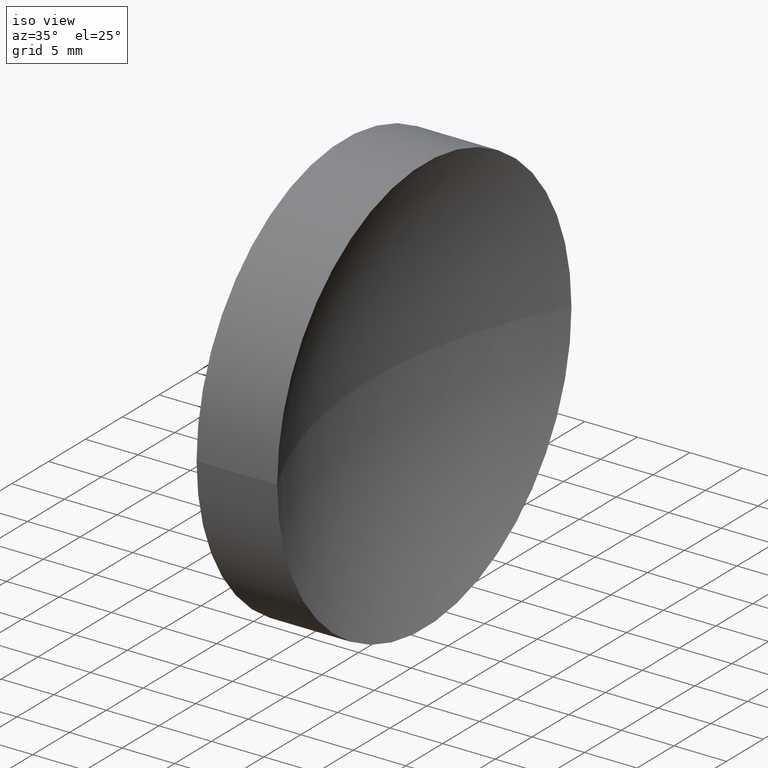
[diagram: clean part render]
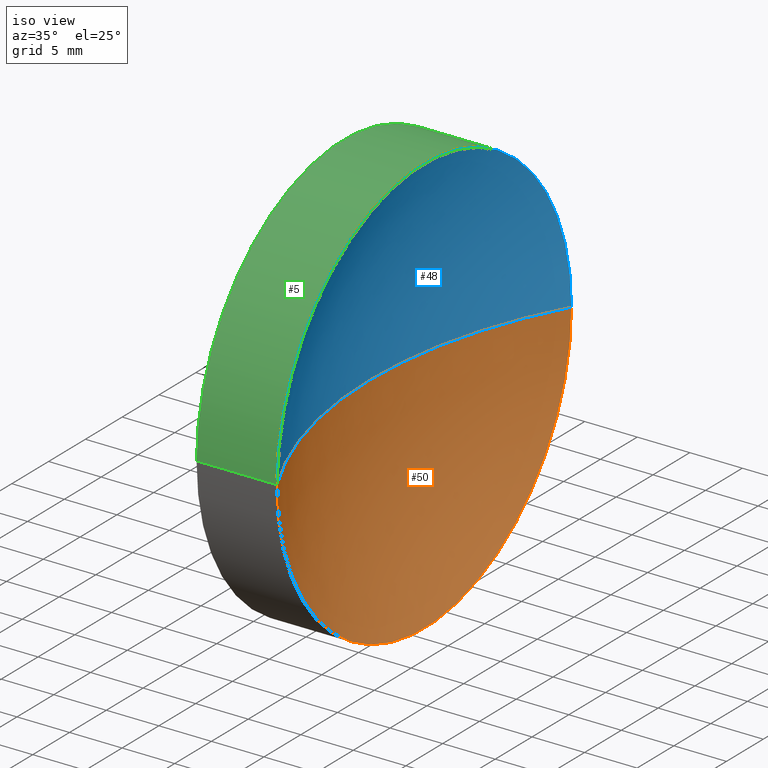
[diagram: same view with three faces highlighted in distinct colors, each labeled with its STEP entity id]
A machine part, iso view with three faces highlighted in distinct colors.
Their STEP definitions:

[orange] entity #50 — the highlighted spherical surface has radius 41.3 mm.
#3 = EDGE_CURVE ( 'NONE', #105, #70, #32, .T. ) ;
#4 = CARTESIAN_POINT ( 'NONE',  ( 158.7754446795023000, 65.15745356914861500, 0.0000000000000000000 ) ) ;
#7 = EDGE_CURVE ( 'NONE', #58, #105, #145, .T. ) ;
#10 = DIRECTION ( 'NONE',  ( 0.0000000000000000000, -0.0000000000000000000, -1.000000000000000000 ) ) ;
#16 = SPHERICAL_SURFACE ( 'NONE', #131, 41.29999999999999700 ) ;
#17 = EDGE_CURVE ( 'NONE', #58, #70, #64, .T. ) ;
#21 = DIRECTION ( 'NONE',  ( -6.938893903907224400E-016, -1.000000000000000000, 0.0000000000000000000 ) ) ;
#22 = CARTESIAN_POINT ( 'NONE',  ( 158.7754446795023000, 65.15745356914861500, 0.0000000000000000000 ) ) ;
#24 = ORIENTED_EDGE ( 'NONE', *, *, #3, .F. ) ;
#32 = CIRCLE ( 'NONE', #141, 41.30000000000000400 ) ;
#40 = ORIENTED_EDGE ( 'NONE', *, *, #7, .F. ) ;
#45 = AXIS2_PLACEMENT_3D ( 'NONE', #22, #159, #96 ) ;
#47 = DIRECTION ( 'NONE',  ( -1.000000000000000000, 0.0000000000000000000, 0.0000000000000000000 ) ) ;
#50 = ADVANCED_FACE ( 'NONE', ( #156 ), #16, .F. ) ;
#58 = VERTEX_POINT ( 'NONE', #115 ) ;
#63 = DIRECTION ( 'NONE',  ( -6.720478357295136600E-016, -1.000000000000000000, 0.0000000000000000000 ) ) ;
#64 = CIRCLE ( 'NONE', #45, 41.29999999999999700 ) ;
#68 = AXIS2_PLACEMENT_3D ( 'NONE', #110, #82, #21 ) ;
#70 = VERTEX_POINT ( 'NONE', #77 ) ;
#77 = CARTESIAN_POINT ( 'NONE',  ( 117.4754446795023000, 65.15745356914864300, 0.0000000000000000000 ) ) ;
#82 = DIRECTION ( 'NONE',  ( -1.000000000000000000, 6.488933942079480100E-016, -0.0000000000000000000 ) ) ;
#96 = DIRECTION ( 'NONE',  ( 0.0000000000000000000, -1.000000000000000000, -1.224646799147353200E-016 ) ) ;
#104 = CARTESIAN_POINT ( 'NONE',  ( 122.6411110105041300, 45.15745356914861500, 0.0000000000000000000 ) ) ;
#105 = VERTEX_POINT ( 'NONE', #104 ) ;
#110 = CARTESIAN_POINT ( 'NONE',  ( 122.6411110105041300, 65.15745182658618300, 0.0000000000000000000 ) ) ;
#113 = CARTESIAN_POINT ( 'NONE',  ( 158.7754446795023000, 65.15745356914861500, 0.0000000000000000000 ) ) ;
#115 = CARTESIAN_POINT ( 'NONE',  ( 122.6411110105041500, 85.15745182658621100, 2.449293384892355000E-015 ) ) ;
#131 = AXIS2_PLACEMENT_3D ( 'NONE', #113, #134, #63 ) ;
#134 = DIRECTION ( 'NONE',  ( 0.0000000000000000000, 0.0000000000000000000, 1.000000000000000000 ) ) ;
#141 = AXIS2_PLACEMENT_3D ( 'NONE', #4, #10, #47 ) ;
#145 = CIRCLE ( 'NONE', #68, 20.00000000000001100 ) ;
#153 = EDGE_LOOP ( 'NONE', ( #40, #160, #24 ) ) ;
#156 = FACE_OUTER_BOUND ( 'NONE', #153, .T. ) ;
#159 = DIRECTION ( 'NONE',  ( -7.946652182046252500E-032, -1.224646799147353200E-016, 1.000000000000000000 ) ) ;
#160 = ORIENTED_EDGE ( 'NONE', *, *, #17, .T. ) ;

[blue] entity #48 — the highlighted spherical surface has radius 41.3 mm.
#3 = EDGE_CURVE ( 'NONE', #105, #70, #32, .T. ) ;
#4 = CARTESIAN_POINT ( 'NONE',  ( 158.7754446795023000, 65.15745356914861500, 0.0000000000000000000 ) ) ;
#10 = DIRECTION ( 'NONE',  ( 0.0000000000000000000, -0.0000000000000000000, -1.000000000000000000 ) ) ;
#11 = ORIENTED_EDGE ( 'NONE', *, *, #17, .F. ) ;
#14 = AXIS2_PLACEMENT_3D ( 'NONE', #62, #146, #33 ) ;
#17 = EDGE_CURVE ( 'NONE', #58, #70, #64, .T. ) ;
#19 = ORIENTED_EDGE ( 'NONE', *, *, #3, .T. ) ;
#22 = CARTESIAN_POINT ( 'NONE',  ( 158.7754446795023000, 65.15745356914861500, 0.0000000000000000000 ) ) ;
#25 = CIRCLE ( 'NONE', #143, 20.00000000000001100 ) ;
#27 = DIRECTION ( 'NONE',  ( -1.000000000000000000, 6.488933942079480100E-016, -0.0000000000000000000 ) ) ;
#32 = CIRCLE ( 'NONE', #141, 41.30000000000000400 ) ;
#33 = DIRECTION ( 'NONE',  ( -6.720478357295136600E-016, -1.000000000000000000, 0.0000000000000000000 ) ) ;
#43 = DIRECTION ( 'NONE',  ( -6.938893903907224400E-016, -1.000000000000000000, 0.0000000000000000000 ) ) ;
#45 = AXIS2_PLACEMENT_3D ( 'NONE', #22, #159, #96 ) ;
#47 = DIRECTION ( 'NONE',  ( -1.000000000000000000, 0.0000000000000000000, 0.0000000000000000000 ) ) ;
#48 = ADVANCED_FACE ( 'NONE', ( #83 ), #93, .F. ) ;
#58 = VERTEX_POINT ( 'NONE', #115 ) ;
#62 = CARTESIAN_POINT ( 'NONE',  ( 158.7754446795023000, 65.15745356914861500, 0.0000000000000000000 ) ) ;
#64 = CIRCLE ( 'NONE', #45, 41.29999999999999700 ) ;
#70 = VERTEX_POINT ( 'NONE', #77 ) ;
#77 = CARTESIAN_POINT ( 'NONE',  ( 117.4754446795023000, 65.15745356914864300, 0.0000000000000000000 ) ) ;
#83 = FACE_OUTER_BOUND ( 'NONE', #125, .T. ) ;
#93 = SPHERICAL_SURFACE ( 'NONE', #14, 41.29999999999999700 ) ;
#96 = DIRECTION ( 'NONE',  ( 0.0000000000000000000, -1.000000000000000000, -1.224646799147353200E-016 ) ) ;
#101 = ORIENTED_EDGE ( 'NONE', *, *, #112, .F. ) ;
#104 = CARTESIAN_POINT ( 'NONE',  ( 122.6411110105041300, 45.15745356914861500, 0.0000000000000000000 ) ) ;
#105 = VERTEX_POINT ( 'NONE', #104 ) ;
#112 = EDGE_CURVE ( 'NONE', #105, #58, #25, .T. ) ;
#115 = CARTESIAN_POINT ( 'NONE',  ( 122.6411110105041500, 85.15745182658621100, 2.449293384892355000E-015 ) ) ;
#125 = EDGE_LOOP ( 'NONE', ( #11, #101, #19 ) ) ;
#139 = CARTESIAN_POINT ( 'NONE',  ( 122.6411110105041300, 65.15745182658618300, 0.0000000000000000000 ) ) ;
#141 = AXIS2_PLACEMENT_3D ( 'NONE', #4, #10, #47 ) ;
#143 = AXIS2_PLACEMENT_3D ( 'NONE', #139, #27, #43 ) ;
#146 = DIRECTION ( 'NONE',  ( 0.0000000000000000000, 0.0000000000000000000, 1.000000000000000000 ) ) ;
#159 = DIRECTION ( 'NONE',  ( -7.946652182046252500E-032, -1.224646799147353200E-016, 1.000000000000000000 ) ) ;

[green] entity #5 — the highlighted cylindrical surface (partial cylindrical patch) has radius 20 mm, axis along (-1, 0, -0).
#1 = ORIENTED_EDGE ( 'NONE', *, *, #103, .T. ) ;
#5 = ADVANCED_FACE ( 'NONE', ( #165 ), #52, .T. ) ;
#18 = CARTESIAN_POINT ( 'NONE',  ( 110.0147892488423800, 85.15745182658621100, 2.449293598294708100E-015 ) ) ;
#25 = CIRCLE ( 'NONE', #143, 20.00000000000001100 ) ;
#27 = DIRECTION ( 'NONE',  ( -1.000000000000000000, 6.488933942079480100E-016, -0.0000000000000000000 ) ) ;
#36 = ORIENTED_EDGE ( 'NONE', *, *, #112, .T. ) ;
#41 = VECTOR ( 'NONE', #75, 1000.000000000000000 ) ;
#43 = DIRECTION ( 'NONE',  ( -6.938893903907224400E-016, -1.000000000000000000, 0.0000000000000000000 ) ) ;
#52 = CYLINDRICAL_SURFACE ( 'NONE', #164, 20.00000000000001100 ) ;
#57 = VECTOR ( 'NONE', #85, 1000.000000000000000 ) ;
#58 = VERTEX_POINT ( 'NONE', #115 ) ;
#67 = LINE ( 'NONE', #118, #41 ) ;
#71 = VERTEX_POINT ( 'NONE', #130 ) ;
#73 = CARTESIAN_POINT ( 'NONE',  ( 114.9754472601862300, 85.15745182658619700, 2.449293598294710100E-015 ) ) ;
#75 = DIRECTION ( 'NONE',  ( -1.000000000000000000, 6.488933942079480100E-016, -0.0000000000000000000 ) ) ;
#81 = CARTESIAN_POINT ( 'NONE',  ( 110.0147892488423600, 65.15745182658619700, 0.0000000000000000000 ) ) ;
#85 = DIRECTION ( 'NONE',  ( -1.000000000000000000, 6.488933942079480100E-016, -0.0000000000000000000 ) ) ;
#90 = ORIENTED_EDGE ( 'NONE', *, *, #124, .F. ) ;
#94 = DIRECTION ( 'NONE',  ( -6.938893903907224400E-016, -1.000000000000000000, 0.0000000000000000000 ) ) ;
#97 = EDGE_LOOP ( 'NONE', ( #36, #1, #133, #90 ) ) ;
#103 = EDGE_CURVE ( 'NONE', #58, #122, #117, .T. ) ;
#104 = CARTESIAN_POINT ( 'NONE',  ( 122.6411110105041300, 45.15745356914861500, 0.0000000000000000000 ) ) ;
#105 = VERTEX_POINT ( 'NONE', #104 ) ;
#112 = EDGE_CURVE ( 'NONE', #105, #58, #25, .T. ) ;
#115 = CARTESIAN_POINT ( 'NONE',  ( 122.6411110105041500, 85.15745182658621100, 2.449293384892355000E-015 ) ) ;
#117 = LINE ( 'NONE', #18, #57 ) ;
#118 = CARTESIAN_POINT ( 'NONE',  ( 110.0147892488423500, 45.15745182658618300, 0.0000000000000000000 ) ) ;
#121 = CARTESIAN_POINT ( 'NONE',  ( 114.9754472601862100, 65.15745182658619700, 0.0000000000000000000 ) ) ;
#122 = VERTEX_POINT ( 'NONE', #73 ) ;
#124 = EDGE_CURVE ( 'NONE', #105, #71, #67, .T. ) ;
#128 = DIRECTION ( 'NONE',  ( -1.000000000000000000, 6.488933942079480100E-016, -0.0000000000000000000 ) ) ;
#130 = CARTESIAN_POINT ( 'NONE',  ( 114.9754472601862000, 45.15745182658619000, 0.0000000000000000000 ) ) ;
#133 = ORIENTED_EDGE ( 'NONE', *, *, #158, .F. ) ;
#135 = DIRECTION ( 'NONE',  ( -1.000000000000000000, 6.488933942079480100E-016, -0.0000000000000000000 ) ) ;
#136 = AXIS2_PLACEMENT_3D ( 'NONE', #121, #128, #140 ) ;
#139 = CARTESIAN_POINT ( 'NONE',  ( 122.6411110105041300, 65.15745182658618300, 0.0000000000000000000 ) ) ;
#140 = DIRECTION ( 'NONE',  ( -6.938893903907227400E-016, -1.000000000000000000, 0.0000000000000000000 ) ) ;
#143 = AXIS2_PLACEMENT_3D ( 'NONE', #139, #27, #43 ) ;
#157 = CIRCLE ( 'NONE', #136, 20.00000000000000400 ) ;
#158 = EDGE_CURVE ( 'NONE', #71, #122, #157, .T. ) ;
#164 = AXIS2_PLACEMENT_3D ( 'NONE', #81, #135, #94 ) ;
#165 = FACE_OUTER_BOUND ( 'NONE', #97, .T. ) ;